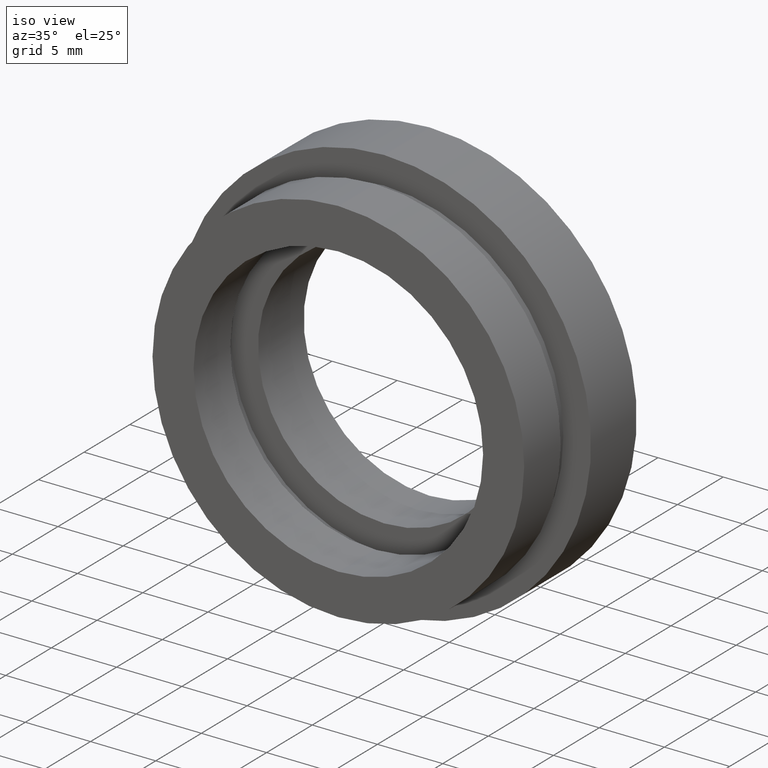
[diagram: clean part render]
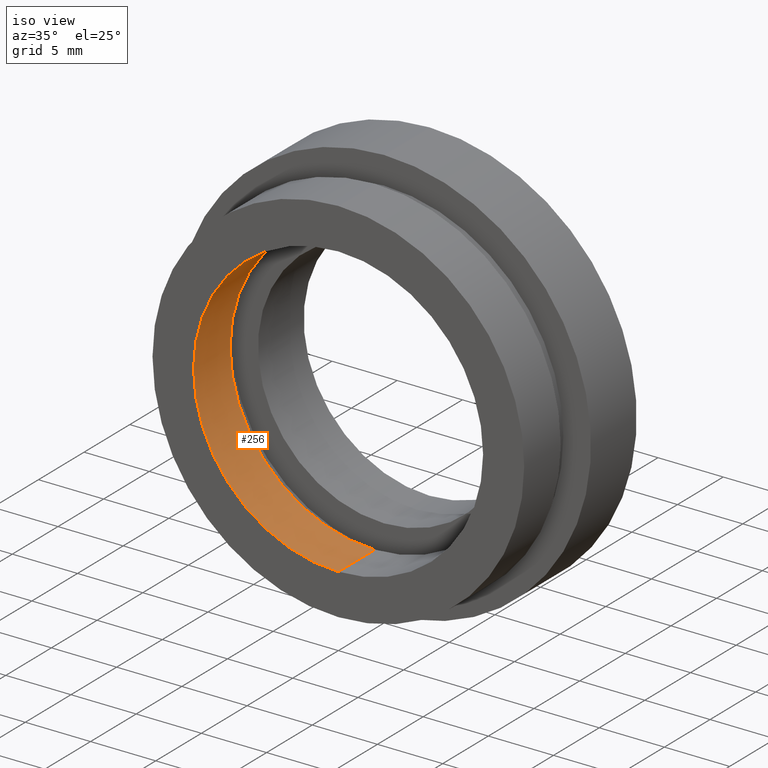
[diagram: same view with one face highlighted and labeled with its STEP entity id]
A machine part, iso view. The second image highlights one B-rep face of the part: STEP entity #256.
In plain terms, the highlighted cylindrical surface (partial cylindrical patch) has radius 11.1 mm, axis along (-0, 1, -0).
Its self-contained STEP definition (entity closure, byte-faithful):
#24 = EDGE_CURVE ( 'NONE', #222, #106, #401, .T. ) ;
#54 = DIRECTION ( 'NONE',  ( -0.0000000000000000000, 1.000000000000000000, -0.0000000000000000000 ) ) ;
#75 = EDGE_CURVE ( 'NONE', #410, #222, #364, .T. ) ;
#76 = AXIS2_PLACEMENT_3D ( 'NONE', #293, #54, #366 ) ;
#80 = ORIENTED_EDGE ( 'NONE', *, *, #24, .F. ) ;
#82 = DIRECTION ( 'NONE',  ( -0.0000000000000000000, 1.000000000000000000, -0.0000000000000000000 ) ) ;
#104 = CARTESIAN_POINT ( 'NONE',  ( 1.359357947053562400E-015, 0.0000000000000000000, -11.10000000000000100 ) ) ;
#106 = VERTEX_POINT ( 'NONE', #198 ) ;
#147 = VECTOR ( 'NONE', #82, 1000.000000000000000 ) ;
#174 = EDGE_CURVE ( 'NONE', #410, #383, #284, .T. ) ;
#189 = DIRECTION ( 'NONE',  ( -0.0000000000000000000, 1.000000000000000000, -0.0000000000000000000 ) ) ;
#198 = CARTESIAN_POINT ( 'NONE',  ( 0.0000000000000000000, 4.000000000000000000, 11.10000000000000100 ) ) ;
#222 = VERTEX_POINT ( 'NONE', #577 ) ;
#256 = ADVANCED_FACE ( 'NONE', ( #622 ), #309, .F. ) ;
#284 = LINE ( 'NONE', #395, #301 ) ;
#293 = CARTESIAN_POINT ( 'NONE',  ( 0.0000000000000000000, 0.0000000000000000000, 0.0000000000000000000 ) ) ;
#296 = DIRECTION ( 'NONE',  ( -0.0000000000000000000, 1.000000000000000000, -0.0000000000000000000 ) ) ;
#301 = VECTOR ( 'NONE', #296, 1000.000000000000000 ) ;
#309 = CYLINDRICAL_SURFACE ( 'NONE', #516, 11.10000000000000100 ) ;
#342 = CIRCLE ( 'NONE', #567, 11.10000000000000100 ) ;
#364 = CIRCLE ( 'NONE', #76, 11.10000000000000100 ) ;
#366 = DIRECTION ( 'NONE',  ( 0.0000000000000000000, 0.0000000000000000000, 1.000000000000000000 ) ) ;
#369 = DIRECTION ( 'NONE',  ( 0.0000000000000000000, 0.0000000000000000000, 1.000000000000000000 ) ) ;
#383 = VERTEX_POINT ( 'NONE', #488 ) ;
#395 = CARTESIAN_POINT ( 'NONE',  ( 1.359357947053562400E-015, 13.74468085106383300, -11.10000000000000100 ) ) ;
#401 = LINE ( 'NONE', #538, #147 ) ;
#410 = VERTEX_POINT ( 'NONE', #104 ) ;
#440 = ORIENTED_EDGE ( 'NONE', *, *, #75, .F. ) ;
#453 = ORIENTED_EDGE ( 'NONE', *, *, #174, .T. ) ;
#455 = DIRECTION ( 'NONE',  ( -0.0000000000000000000, 1.000000000000000000, -0.0000000000000000000 ) ) ;
#460 = ORIENTED_EDGE ( 'NONE', *, *, #602, .T. ) ;
#465 = DIRECTION ( 'NONE',  ( 0.0000000000000000000, 0.0000000000000000000, 1.000000000000000000 ) ) ;
#466 = EDGE_LOOP ( 'NONE', ( #440, #453, #460, #80 ) ) ;
#488 = CARTESIAN_POINT ( 'NONE',  ( 1.359357947053562400E-015, 4.000000000000000000, -11.10000000000000100 ) ) ;
#516 = AXIS2_PLACEMENT_3D ( 'NONE', #525, #189, #465 ) ;
#525 = CARTESIAN_POINT ( 'NONE',  ( 0.0000000000000000000, 13.74468085106383300, 0.0000000000000000000 ) ) ;
#538 = CARTESIAN_POINT ( 'NONE',  ( 0.0000000000000000000, 13.74468085106383300, 11.10000000000000100 ) ) ;
#542 = CARTESIAN_POINT ( 'NONE',  ( 0.0000000000000000000, 4.000000000000000000, 0.0000000000000000000 ) ) ;
#567 = AXIS2_PLACEMENT_3D ( 'NONE', #542, #455, #369 ) ;
#577 = CARTESIAN_POINT ( 'NONE',  ( 0.0000000000000000000, 0.0000000000000000000, 11.10000000000000100 ) ) ;
#602 = EDGE_CURVE ( 'NONE', #383, #106, #342, .T. ) ;
#622 = FACE_OUTER_BOUND ( 'NONE', #466, .T. ) ;